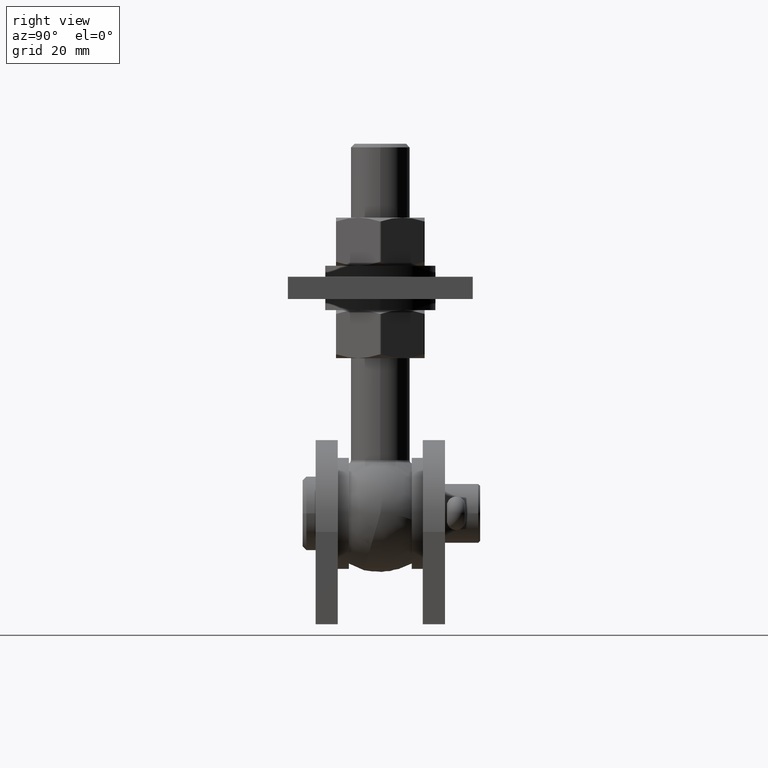
[diagram: clean part render]
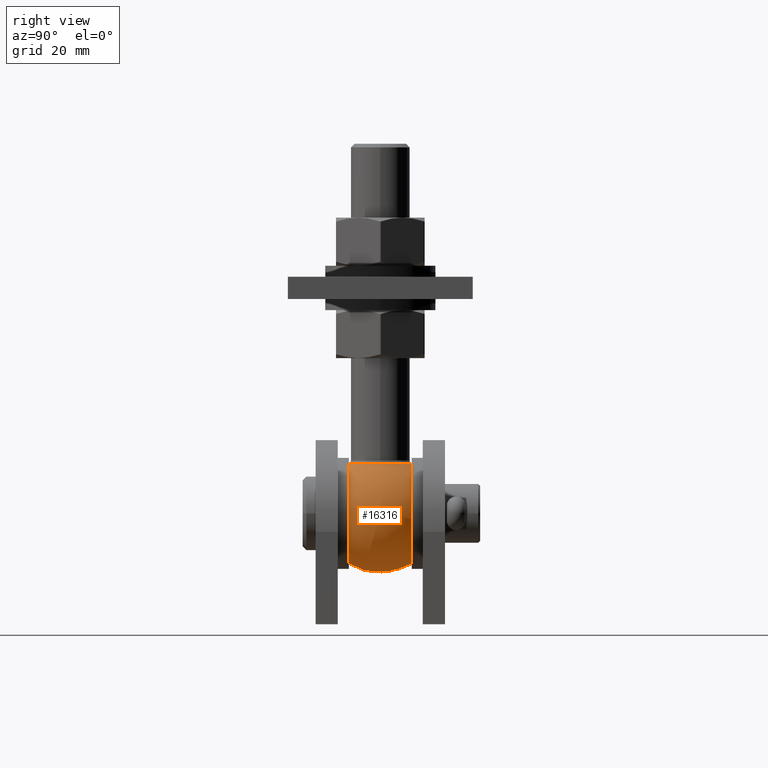
[diagram: same view with one face highlighted and labeled with its STEP entity id]
A machine part, right view. The second image highlights one B-rep face of the part: STEP entity #16316.
In plain terms, the highlighted spherical surface has radius 16 mm.
Its self-contained STEP definition (entity closure, byte-faithful):
#764 = CARTESIAN_POINT ( 'NONE',  ( 0.000000000000000000, 0.000000000000000000, 0.000000000000000000 ) ) ;
#1703 = VERTEX_POINT ( 'NONE', #22330 ) ;
#1841 = SPHERICAL_SURFACE ( 'NONE', #5746, 16.00000000000000000 ) ;
#2943 = DIRECTION ( 'NONE',  ( 0.000000000000000000, 1.836970198721028208E-16, -1.000000000000000000 ) ) ;
#3848 = FACE_OUTER_BOUND ( 'NONE', #24689, .T. ) ;
#5746 = AXIS2_PLACEMENT_3D ( 'NONE', #764, #13773, #2943 ) ;
#6458 = DIRECTION ( 'NONE',  ( 8.283039504820623957E-30, -1.000000000000000000, -1.836970198721031167E-16 ) ) ;
#6580 = FACE_BOUND ( 'NONE', #27359, .T. ) ;
#6582 = ORIENTED_EDGE ( 'NONE', *, *, #9309, .F. ) ;
#7515 = CARTESIAN_POINT ( 'NONE',  ( -6.933347799794049071E-29, 8.499999999999996447, 3.122849337825752194E-15 ) ) ;
#9309 = EDGE_CURVE ( 'NONE', #10537, #10537, #22769, .T. ) ;
#10537 = VERTEX_POINT ( 'NONE', #15783 ) ;
#11932 = DIRECTION ( 'NONE',  ( 0.000000000000000000, 1.279724787187279111E-16, -1.000000000000000000 ) ) ;
#13059 = AXIS2_PLACEMENT_3D ( 'NONE', #21495, #6458, #15030 ) ;
#13508 = EDGE_CURVE ( 'NONE', #1703, #1703, #27366, .T. ) ;
#13773 = DIRECTION ( 'NONE',  ( 1.000000000000000000, 8.283039504820623957E-30, 1.521569672518446985E-45 ) ) ;
#13911 = DIRECTION ( 'NONE',  ( -1.000000000000000000, 8.283039504820622556E-30, 0.000000000000000000 ) ) ;
#14428 = ORIENTED_EDGE ( 'NONE', *, *, #25617, .T. ) ;
#15030 = DIRECTION ( 'NONE',  ( 0.000000000000000000, 1.279724787187279111E-16, -1.000000000000000000 ) ) ;
#15636 = VERTEX_POINT ( 'NONE', #22225 ) ;
#15783 = CARTESIAN_POINT ( 'NONE',  ( 6.933347799794049071E-29, -8.499999999999996447, -13.55544171172596002 ) ) ;
#16093 = DIRECTION ( 'NONE',  ( 0.000000000000000000, -1.477553729406833117E-31, -1.000000000000000000 ) ) ;
#16316 = ADVANCED_FACE ( 'NONE', ( #6580, #3848, #16445 ), #1841, .T. ) ;
#16445 = FACE_OUTER_BOUND ( 'NONE', #23516, .T. ) ;
#18090 = DIRECTION ( 'NONE',  ( 8.283039504820623957E-30, -1.000000000000000000, -1.836970198721031167E-16 ) ) ;
#18617 = AXIS2_PLACEMENT_3D ( 'NONE', #7515, #18090, #11932 ) ;
#20207 = ORIENTED_EDGE ( 'NONE', *, *, #13508, .T. ) ;
#21289 = CIRCLE ( 'NONE', #18617, 13.55544171172596002 ) ;
#21495 = CARTESIAN_POINT ( 'NONE',  ( 6.933347799794049071E-29, -8.499999999999998224, -1.115231487558327095E-30 ) ) ;
#22225 = CARTESIAN_POINT ( 'NONE',  ( -6.933347799794049071E-29, 8.499999999999998224, -13.55544171172595824 ) ) ;
#22330 = CARTESIAN_POINT ( 'NONE',  ( -8.470588235294119528, 7.219134139789823196E-29, 13.57384009586443163 ) ) ;
#22719 = CARTESIAN_POINT ( 'NONE',  ( 0.000000000000000000, 2.029124415888235025E-30, 13.57384009586443163 ) ) ;
#22769 = CIRCLE ( 'NONE', #13059, 13.55544171172596002 ) ;
#23516 = EDGE_LOOP ( 'NONE', ( #6582 ) ) ;
#24689 = EDGE_LOOP ( 'NONE', ( #14428 ) ) ;
#25617 = EDGE_CURVE ( 'NONE', #15636, #15636, #21289, .T. ) ;
#27359 = EDGE_LOOP ( 'NONE', ( #20207 ) ) ;
#27366 = CIRCLE ( 'NONE', #28150, 8.470588235294119528 ) ;
#28150 = AXIS2_PLACEMENT_3D ( 'NONE', #22719, #16093, #13911 ) ;